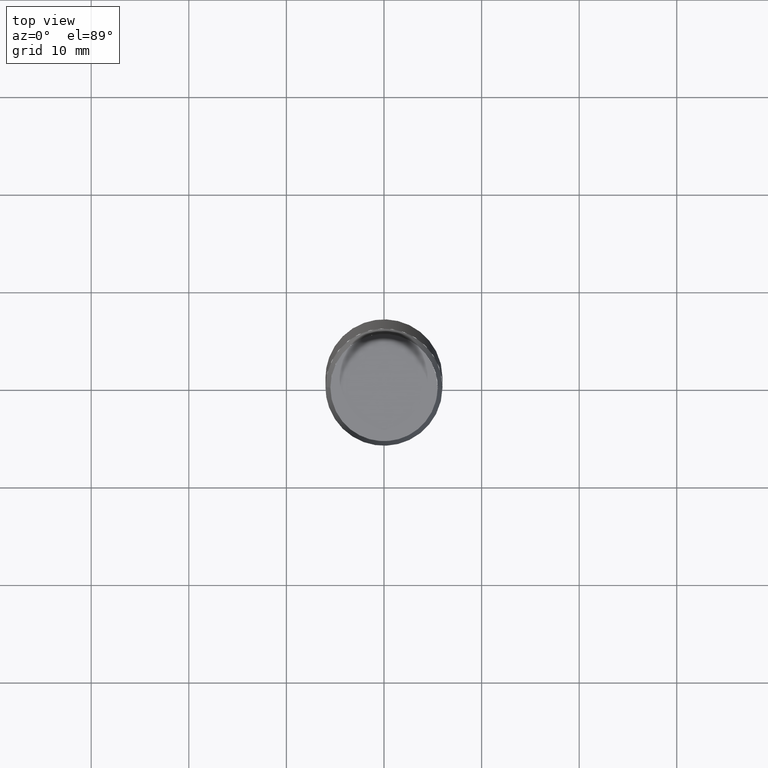
[diagram: clean part render]
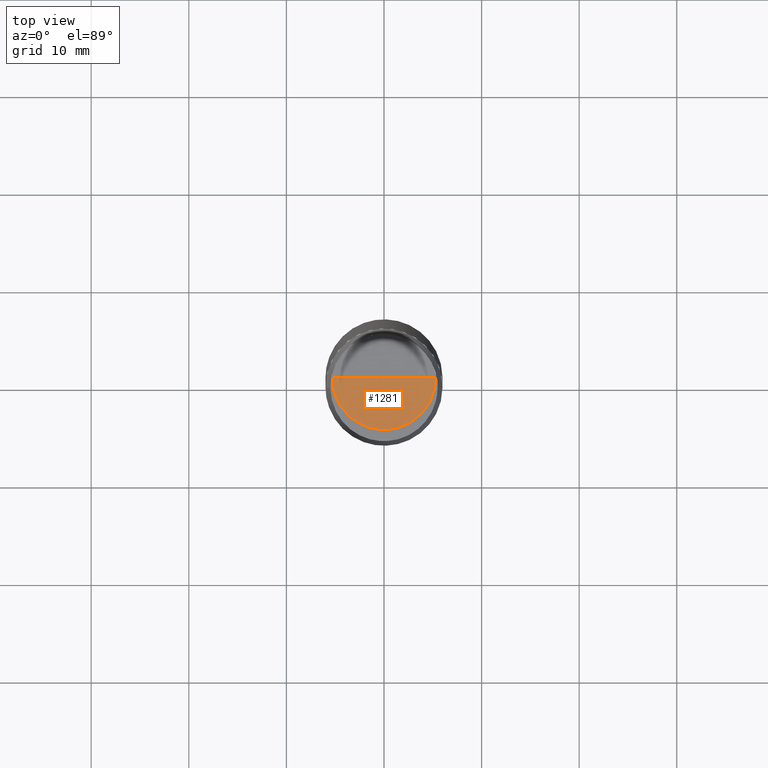
[diagram: same view with one face highlighted and labeled with its STEP entity id]
A machine part, top view. The second image highlights one B-rep face of the part: STEP entity #1281.
In plain terms, the highlighted face is a freeform B-spline surface patch.
Its self-contained STEP definition (entity closure, byte-faithful):
#928=CARTESIAN_POINT('',(5.3,0.0,55.13398022));
#932=CARTESIAN_POINT('',(-5.3,0.0,55.13398022));
#933=CARTESIAN_POINT('',(0.0,0.0,55.13398022));
#940=CARTESIAN_POINT('',(-5.3,-5.3,55.13398022));
#941=CARTESIAN_POINT('',(0.0,-5.3,55.13398022));
#942=CARTESIAN_POINT('',(5.3,-5.3,55.13398022));
#1266=(
BOUNDED_SURFACE()
B_SPLINE_SURFACE(1,2,(
(#932,#940,#941,#942,#928),
(#933,#933,#933,#933,#933)
), .UNSPECIFIED.,.F.,.F.,.F.)
B_SPLINE_SURFACE_WITH_KNOTS((2,2),(3,2,3),(
0.0,1.0),(
0.0,0.5,1.0), .UNSPECIFIED.)
GEOMETRIC_REPRESENTATION_ITEM()
RATIONAL_B_SPLINE_SURFACE(((1.0,0.707106781187,1.0,0.707106781187,1.0),
(1.0,0.707106781187,1.0,0.707106781187,1.0)
))
REPRESENTATION_ITEM('')
SURFACE()
);
#1267=(
BOUNDED_CURVE()
B_SPLINE_CURVE(1,(#933,#928),.UNSPECIFIED.,.F.,.F.)
B_SPLINE_CURVE_WITH_KNOTS((2,2),
(0.0,1.0),.UNSPECIFIED.)
CURVE()
GEOMETRIC_REPRESENTATION_ITEM()
RATIONAL_B_SPLINE_CURVE((1.0,1.0))
REPRESENTATION_ITEM('')
);
#1268=(
BOUNDED_CURVE()
B_SPLINE_CURVE(2,(#928,#942,#941,#940,#932),.UNSPECIFIED.,.F.,.F.)
B_SPLINE_CURVE_WITH_KNOTS((3,2,3),
(0.0,0.5,1.0),.UNSPECIFIED.)
CURVE()
GEOMETRIC_REPRESENTATION_ITEM()
RATIONAL_B_SPLINE_CURVE((1.0,0.707106781187,1.0,0.707106781187,1.0))
REPRESENTATION_ITEM('')
);
#1269=(
BOUNDED_CURVE()
B_SPLINE_CURVE(1,(#932,#933),.UNSPECIFIED.,.F.,.F.)
B_SPLINE_CURVE_WITH_KNOTS((2,2),
(0.0,1.0),.UNSPECIFIED.)
CURVE()
GEOMETRIC_REPRESENTATION_ITEM()
RATIONAL_B_SPLINE_CURVE((1.0,1.0))
REPRESENTATION_ITEM('')
);
#1270=VERTEX_POINT('',#928);
#1271=VERTEX_POINT('',#932);
#1272=VERTEX_POINT('',#933);
#1273=EDGE_CURVE('',#1272,#1270,#1267,.T.);
#1274=EDGE_CURVE('',#1270,#1271,#1268,.T.);
#1275=EDGE_CURVE('',#1271,#1272,#1269,.T.);
#1276=ORIENTED_EDGE('',*,*,#1273,.T.);
#1277=ORIENTED_EDGE('',*,*,#1274,.T.);
#1278=ORIENTED_EDGE('',*,*,#1275,.T.);
#1279=EDGE_LOOP('',(#1276,#1277,#1278));
#1280=FACE_OUTER_BOUND('',#1279,.T.);
#1281=ADVANCED_FACE('',(#1280),#1266,.T.);